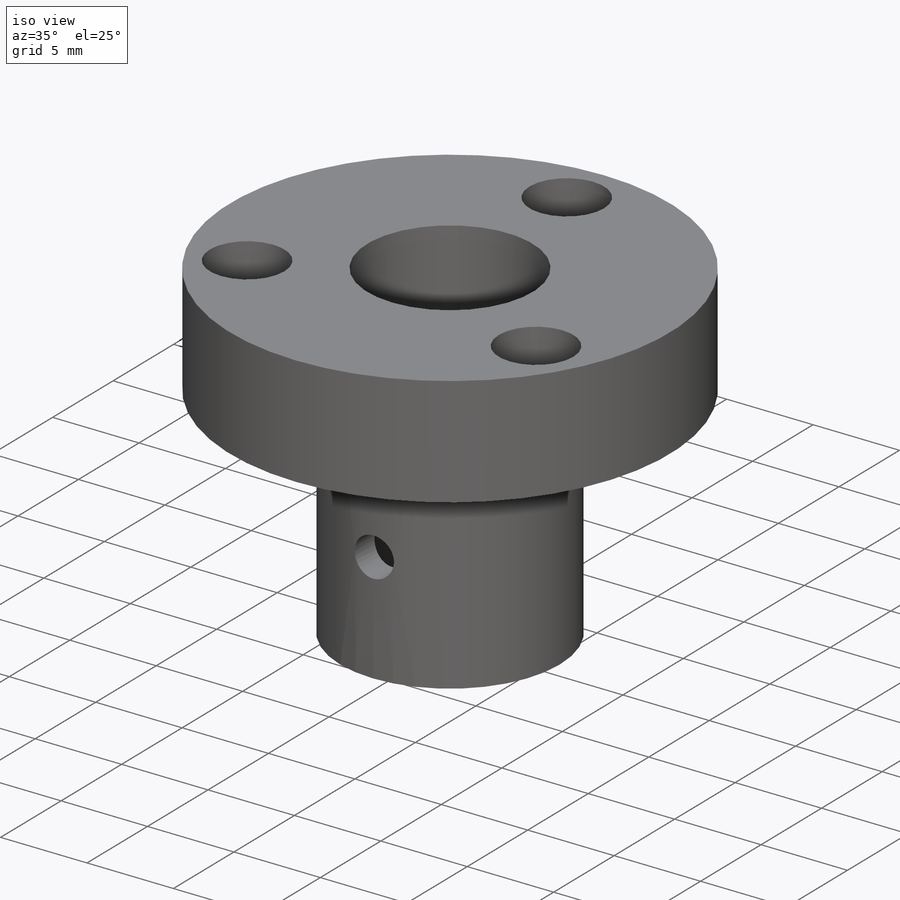
[diagram: iso view]
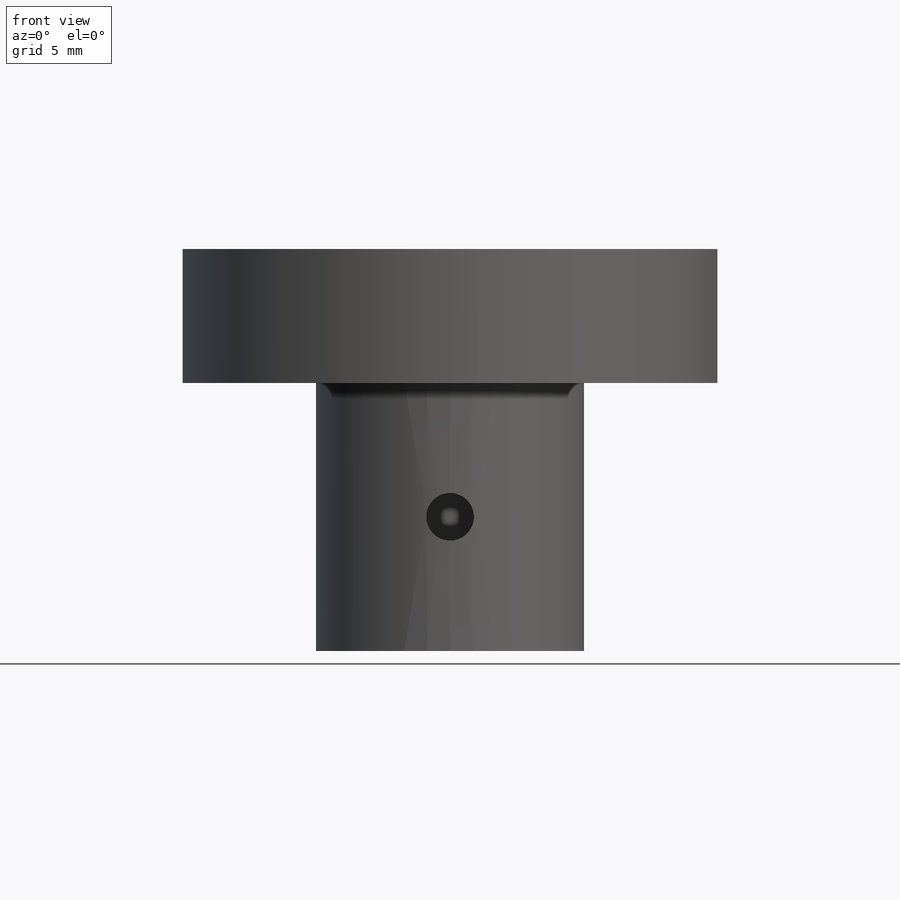
[diagram: front view]
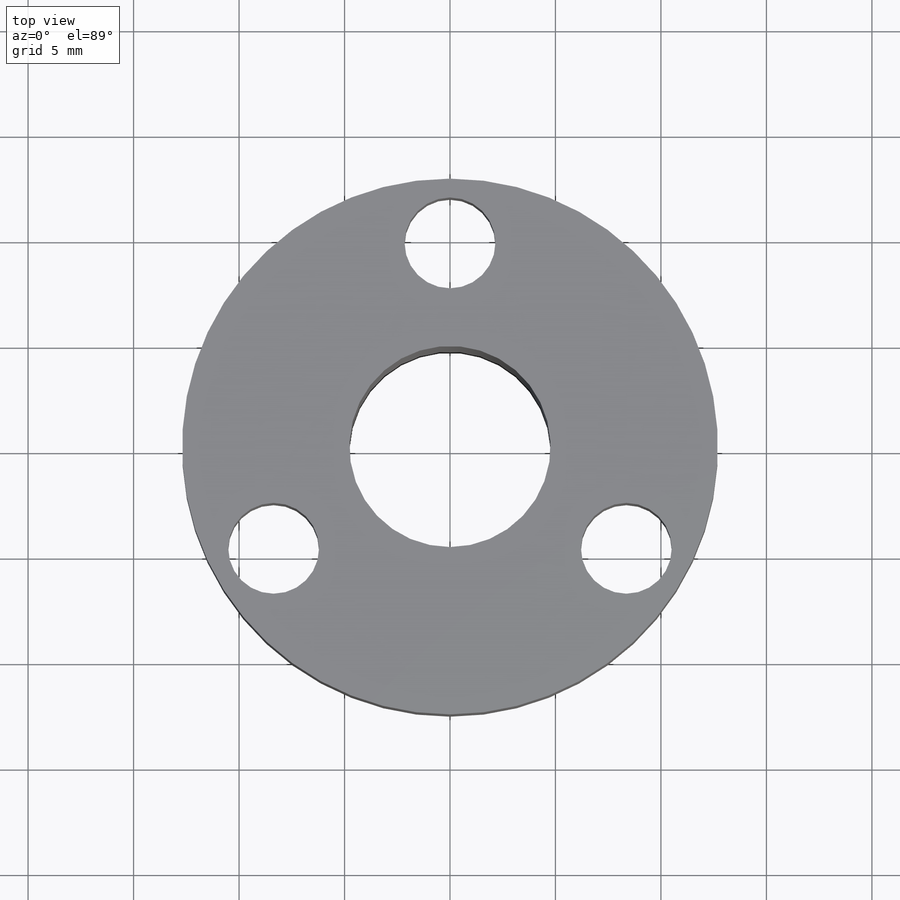
[diagram: top view]
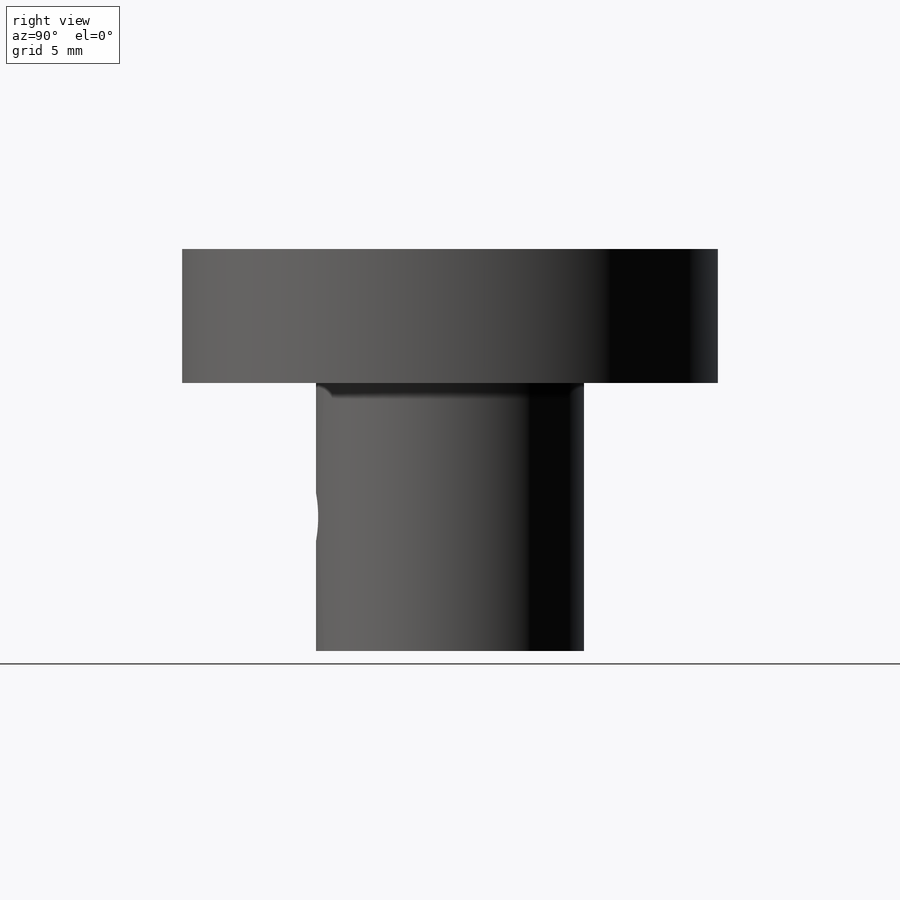
[diagram: right view]
SOLIDWORKS PART (.sldprt)
format: sldprt  version: not decoded by parser v0  size: 224,256 bytes
history: native  units: mm
features: sketch x7, extrude x2, hole x2, material x1, cut_extrude x1 (+11 scaffold rows collapsed)
feature tree (24):
  scaffold x11  (default folders/planes/origin — collapsed)
  material  "Material <not specified>"
  sketch  "Sketch1"  dims[D1=12.7mm]
  extrude  "Boss-Extrude1"  Depth=12.7mm
  sketch  "Sketch2"  dims[D1=25.4mm]
  extrude  "Boss-Extrude2"  Depth=6.35mm
  sketch  "Sketch3"  dims[D1=~9.53516mm D2=~4.595984mm D3=~4.595984mm]
  cut_extrude  "Cut-Extrude1"  [1 undecoded]
  hole  "#18 (0.1695) Diameter Hole1"  Diameter=4.3053mm Depth=25.4mm
  sketch  "Sketch5"  dims[c1.D1=9.652mm c1.D2=12.7mm c2.D2=120.0deg c2.D3=~9.935271mm c3.D3=120.0deg c3.D4=9.652mm c3.D5=9.652mm]
  sketch  "Sketch6"  dims[hole-wizard template sketch: 47 standard entries collapsed; hole parameters kept: c15.Hole Depth=25.4mm c15.D3=~14.816244mm c15.Drill Angle=118.0deg]
  hole  "#43 (0.089) Diameter Hole1"  Diameter=2.2606mm Depth=25.4mm
  sketch  "Sketch9"  dims[D1=6.35mm]
  sketch  "Sketch8"  dims[hole-wizard template sketch: 47 standard entries collapsed; hole parameters kept: c15.Hole Depth=25.4mm c15.D3=~14.816244mm c15.Drill Angle=118.0deg]
decode coverage: 11 of 12 modeling features carry decoded parameters
note: ~ marks probable driven/reference dimensions
note: 1 parameter value undecoded
note: suppression state not decoded; provenance and decode notes live in map.json
